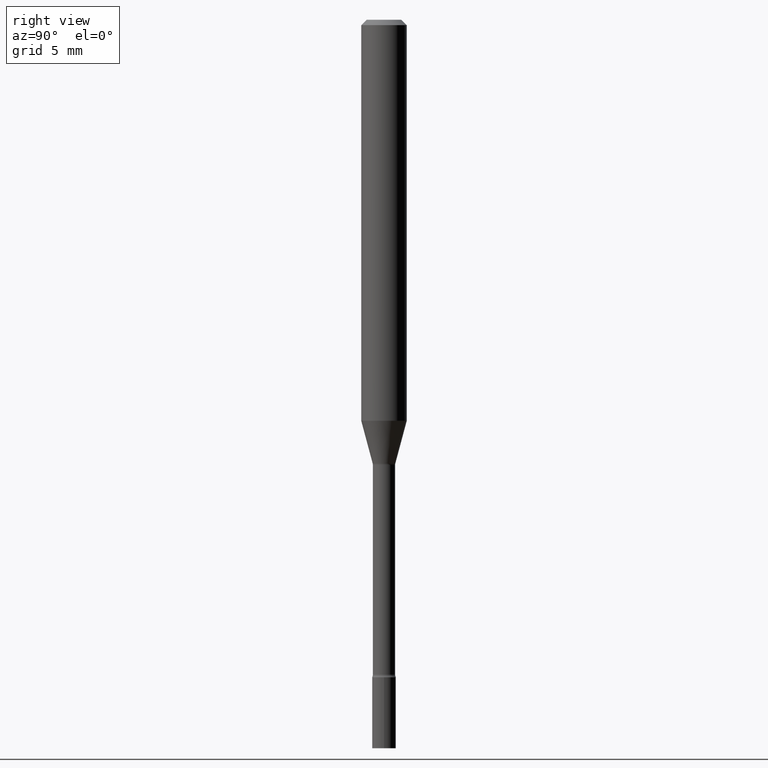
[diagram: clean part render]
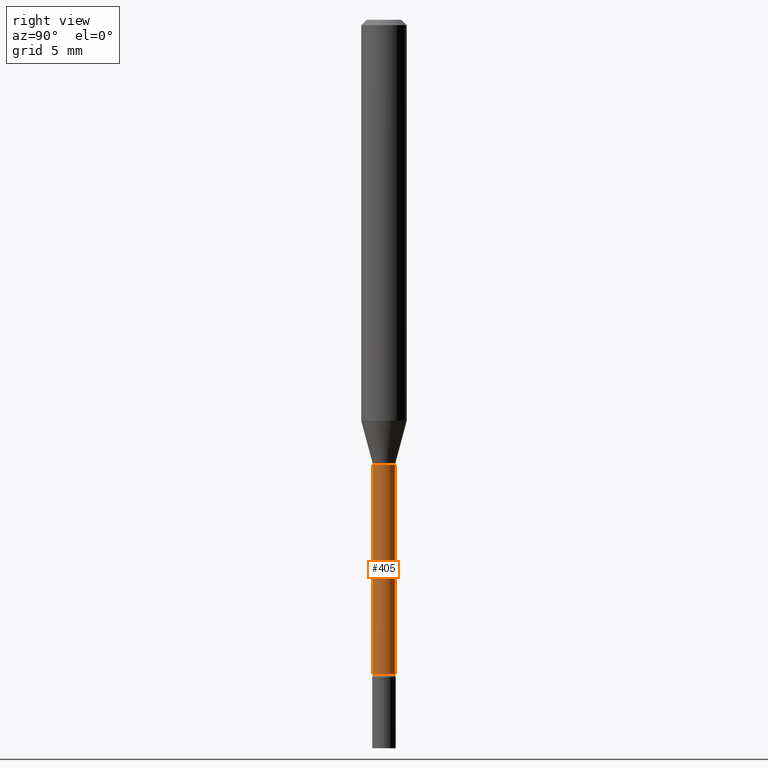
[diagram: same view with one face highlighted and labeled with its STEP entity id]
A machine part, right view. The second image highlights one B-rep face of the part: STEP entity #405.
In plain terms, the highlighted cylindrical surface (edge-blend (fillet) strip) has radius 0.776 mm, axis along (-0, 0, 1).
Its self-contained STEP definition (entity closure, byte-faithful):
#17 = CYLINDRICAL_SURFACE ( 'NONE', #173, 0.03055000000000002505 ) ;
#25 = CARTESIAN_POINT ( 'NONE',  ( -2.133295098032718676E-16, -0.03055000000000632904, -1.797604224178627419 ) ) ;
#45 = CARTESIAN_POINT ( 'NONE',  ( -2.133295098032855247E-16, -0.03055000000000426819, -1.221974787463810719 ) ) ;
#52 = VERTEX_POINT ( 'NONE', #25 ) ;
#55 = FACE_OUTER_BOUND ( 'NONE', #223, .T. ) ;
#57 = EDGE_CURVE ( 'NONE', #288, #97, #113, .T. ) ;
#77 = CARTESIAN_POINT ( 'NONE',  ( 2.239985974484158404E-16, 0.03054999999999378005, -1.797604224178627419 ) ) ;
#86 = EDGE_CURVE ( 'NONE', #373, #97, #430, .T. ) ;
#90 = CARTESIAN_POINT ( 'NONE',  ( -2.133295098033156001E-16, -0.03055000000000002505, 1.066657279724609578E-16 ) ) ;
#97 = VERTEX_POINT ( 'NONE', #114 ) ;
#113 = CIRCLE ( 'NONE', #310, 0.03055000000000000077 ) ;
#114 = CARTESIAN_POINT ( 'NONE',  ( 2.170708057747546898E-16, 0.03054999999999572988, -1.221974787463810941 ) ) ;
#172 = DIRECTION ( 'NONE',  ( -6.982962677686265133E-15, -1.000000000000000000, 4.471109645931690737E-15 ) ) ;
#173 = AXIS2_PLACEMENT_3D ( 'NONE', #176, #506, #262 ) ;
#176 = CARTESIAN_POINT ( 'NONE',  ( 0.000000000000000000, 0.000000000000000000, 0.000000000000000000 ) ) ;
#184 = CARTESIAN_POINT ( 'NONE',  ( 2.988274045579844042E-29, -4.266541088995761830E-15, -1.221974787463810941 ) ) ;
#190 = CARTESIAN_POINT ( 'NONE',  ( 2.170708057747107601E-16, 0.03055000000000002505, -1.066657279724609578E-16 ) ) ;
#192 = VECTOR ( 'NONE', #479, 39.37007874015748143 ) ;
#203 = DIRECTION ( 'NONE',  ( -6.982962677686265133E-15, -1.000000000000000000, 0.000000000000000000 ) ) ;
#216 = DIRECTION ( 'NONE',  ( -2.445446564230640658E-29, 3.491513190587917155E-15, 1.000000000000000000 ) ) ;
#217 = ORIENTED_EDGE ( 'NONE', *, *, #86, .T. ) ;
#223 = EDGE_LOOP ( 'NONE', ( #297, #217, #505, #284 ) ) ;
#261 = AXIS2_PLACEMENT_3D ( 'NONE', #409, #277, #203 ) ;
#262 = DIRECTION ( 'NONE',  ( -6.982962677686265922E-15, -1.000000000000000000, 3.491513190587917155E-15 ) ) ;
#277 = DIRECTION ( 'NONE',  ( -2.445446564230640658E-29, 3.491513190587917155E-15, 1.000000000000000000 ) ) ;
#284 = ORIENTED_EDGE ( 'NONE', *, *, #472, .F. ) ;
#288 = VERTEX_POINT ( 'NONE', #45 ) ;
#297 = ORIENTED_EDGE ( 'NONE', *, *, #306, .T. ) ;
#306 = EDGE_CURVE ( 'NONE', #52, #373, #518, .T. ) ;
#310 = AXIS2_PLACEMENT_3D ( 'NONE', #184, #345, #172 ) ;
#325 = VECTOR ( 'NONE', #216, 39.37007874015748143 ) ;
#345 = DIRECTION ( 'NONE',  ( -2.445446564230640658E-29, 3.491513190587917155E-15, 1.000000000000000000 ) ) ;
#373 = VERTEX_POINT ( 'NONE', #77 ) ;
#405 = ADVANCED_FACE ( 'NONE', ( #55 ), #17, .T. ) ;
#409 = CARTESIAN_POINT ( 'NONE',  ( 4.395945073864110714E-29, -6.276358860176236554E-15, -1.797604224178627419 ) ) ;
#421 = LINE ( 'NONE', #90, #325 ) ;
#430 = LINE ( 'NONE', #190, #192 ) ;
#472 = EDGE_CURVE ( 'NONE', #52, #288, #421, .T. ) ;
#479 = DIRECTION ( 'NONE',  ( -2.445446564230640658E-29, 3.491513190587917155E-15, 1.000000000000000000 ) ) ;
#505 = ORIENTED_EDGE ( 'NONE', *, *, #57, .F. ) ;
#506 = DIRECTION ( 'NONE',  ( -2.445446564230640658E-29, 3.491513190587917155E-15, 1.000000000000000000 ) ) ;
#518 = CIRCLE ( 'NONE', #261, 0.03055000000000005628 ) ;